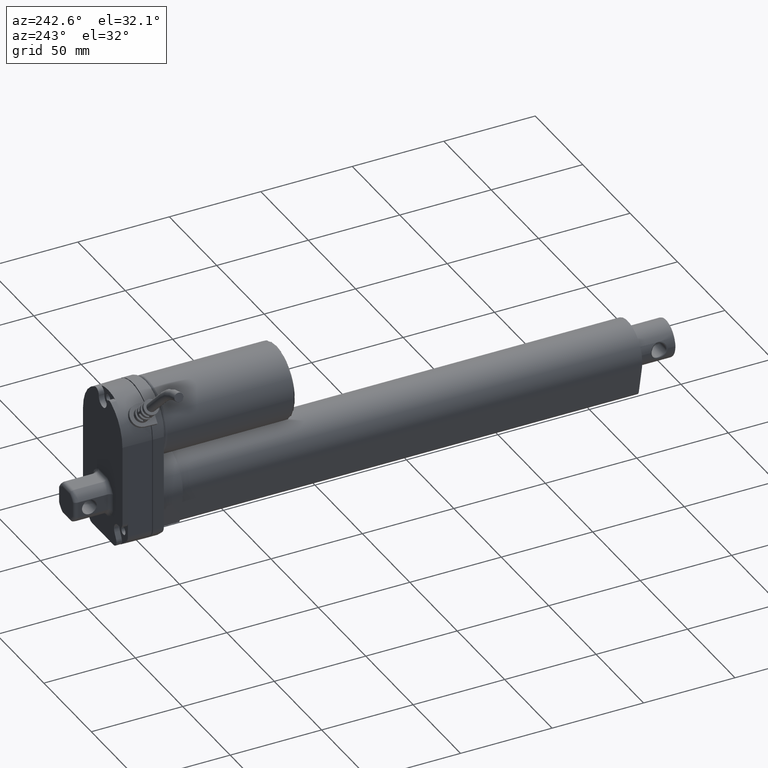
[diagram: clean part render]
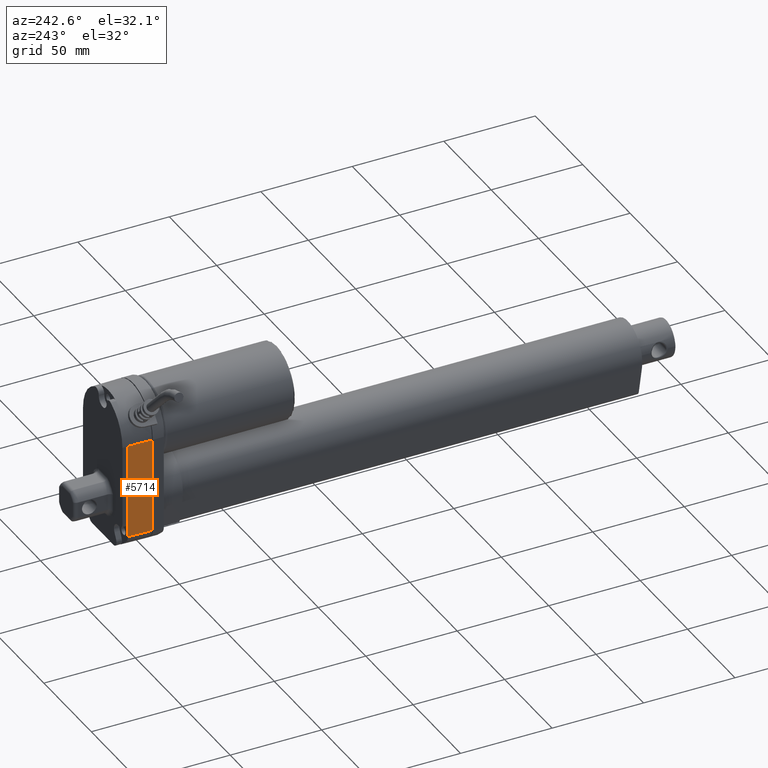
[diagram: same view with one face highlighted and labeled with its STEP entity id]
A machine part, auxiliary view. The second image highlights one B-rep face of the part: STEP entity #5714.
In plain terms, the highlighted planar face has unit normal (-0.9998, 0.0175, 0).
Its self-contained STEP definition (entity closure, byte-faithful):
#277=PLANE('',#6360);
#662=LINE('',#10618,#1119);
#665=LINE('',#10628,#1122);
#701=LINE('',#10747,#1158);
#702=LINE('',#10749,#1159);
#703=LINE('',#10751,#1160);
#1119=VECTOR('',#7713,1000.);
#1122=VECTOR('',#7722,1000.);
#1158=VECTOR('',#7844,1000.);
#1159=VECTOR('',#7847,1000.);
#1160=VECTOR('',#7848,1000.);
#2536=ORIENTED_EDGE('',*,*,#3540,.T.);
#2537=ORIENTED_EDGE('',*,*,#3541,.T.);
#2538=ORIENTED_EDGE('',*,*,#3486,.F.);
#2539=ORIENTED_EDGE('',*,*,#3481,.F.);
#2540=ORIENTED_EDGE('',*,*,#3539,.F.);
#3481=EDGE_CURVE('',#4102,#4056,#662,.T.);
#3486=EDGE_CURVE('',#4056,#4105,#665,.T.);
#3539=EDGE_CURVE('',#4130,#4102,#701,.T.);
#3540=EDGE_CURVE('',#4130,#4131,#702,.T.);
#3541=EDGE_CURVE('',#4131,#4105,#703,.T.);
#4056=VERTEX_POINT('',#10451);
#4102=VERTEX_POINT('',#10619);
#4105=VERTEX_POINT('',#10627);
#4130=VERTEX_POINT('',#10746);
#4131=VERTEX_POINT('',#10750);
#4834=EDGE_LOOP('',(#2536,#2537,#2538,#2539,#2540));
#5233=FACE_BOUND('',#4834,.T.);
#5714=ADVANCED_FACE('',(#5233),#277,.T.);
#6360=AXIS2_PLACEMENT_3D('',#10748,#7845,#7846);
#7713=DIRECTION('',(0.,0.,1.));
#7722=DIRECTION('',(0.,0.,1.));
#7844=DIRECTION('',(0.0174524064373205,0.999847695156391,0.));
#7845=DIRECTION('',(-0.999847695156391,0.0174524064373205,0.));
#7846=DIRECTION('',(0.,0.,-1.));
#7847=DIRECTION('',(0.,0.,1.));
#7848=DIRECTION('',(0.0174524064373205,0.999847695156391,0.));
#10451=CARTESIAN_POINT('',(-20.7730841559307,13.,-23.85));
#10618=CARTESIAN_POINT('',(-20.7730841559313,13.,-5.8835374099));
#10619=CARTESIAN_POINT('',(-20.7730841559313,13.,-31.76707481981));
#10627=CARTESIAN_POINT('',(-20.773084155931,12.9999999999999,20.));
#10628=CARTESIAN_POINT('',(-20.7730841559313,13.,-5.8835374099));
#10746=CARTESIAN_POINT('',(-20.9999999999993,-5.55111512312578E-14,-31.76707481981));
#10747=CARTESIAN_POINT('',(-20.886542077965,6.5,-31.76707481981));
#10748=CARTESIAN_POINT('',(-20.76854583905,13.26,21.0353414964));
#10749=CARTESIAN_POINT('',(-21.,0.,2.68617149981609E-5));
#10750=CARTESIAN_POINT('',(-20.9999999999993,-1.38777878078145E-14,20.));
#10751=CARTESIAN_POINT('',(-20.886542077965,6.5,20.));